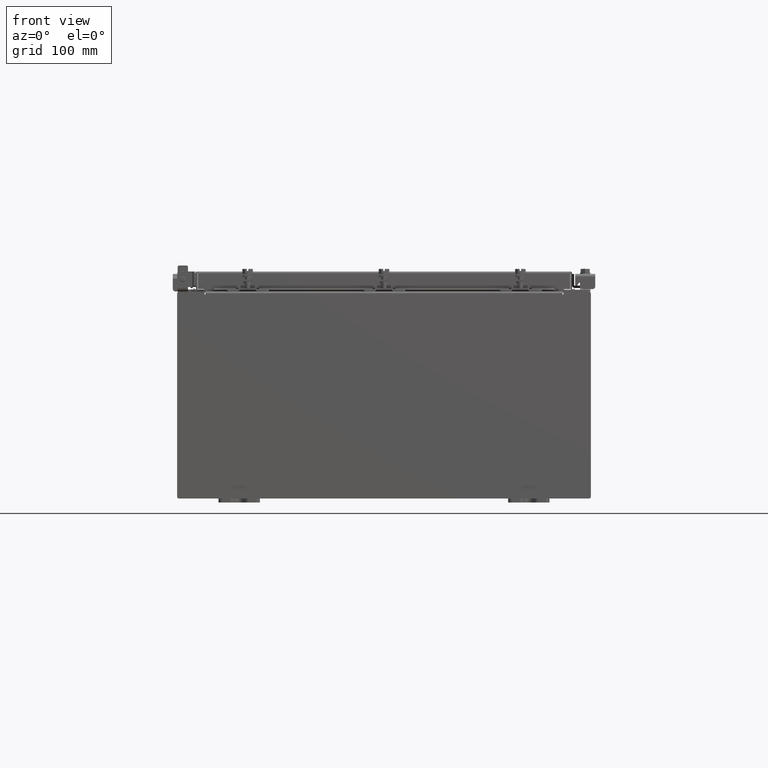
[diagram: clean part render]
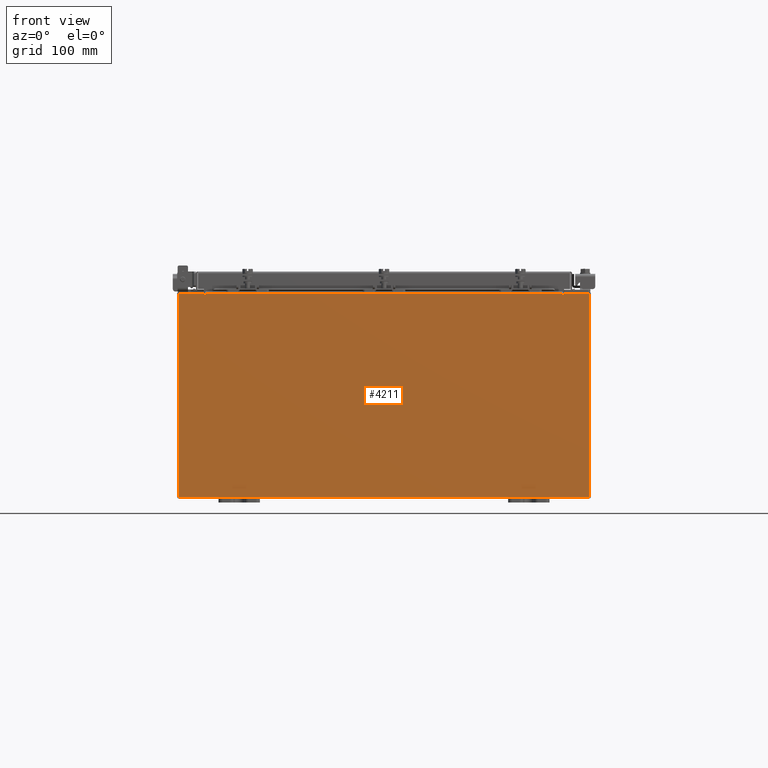
[diagram: same view with one face highlighted and labeled with its STEP entity id]
A machine part, front view. The second image highlights one B-rep face of the part: STEP entity #4211.
In plain terms, the highlighted planar face has unit normal (-0, 1, -0).
Its self-contained STEP definition (entity closure, byte-faithful):
#147 = DIRECTION ( 'NONE',  ( 0.0000000000000000000, 0.0000000000000000000, -1.000000000000000000 ) ) ;
#336 = DIRECTION ( 'NONE',  ( -1.000000000000000000, -0.0000000000000000000, -0.0000000000000000000 ) ) ;
#438 = LINE ( 'NONE', #8340, #18470 ) ;
#469 = AXIS2_PLACEMENT_3D ( 'NONE', #7361, #19547, #9124 ) ;
#649 = DIRECTION ( 'NONE',  ( 0.0000000000000000000, 0.0000000000000000000, 1.000000000000000000 ) ) ;
#845 = VECTOR ( 'NONE', #21906, 39.37007874015748100 ) ;
#1278 = DIRECTION ( 'NONE',  ( -0.0000000000000000000, -0.0000000000000000000, 1.000000000000000000 ) ) ;
#1287 = ORIENTED_EDGE ( 'NONE', *, *, #5927, .F. ) ;
#1333 = VERTEX_POINT ( 'NONE', #18569 ) ;
#1365 = DIRECTION ( 'NONE',  ( 0.0000000000000000000, 0.0000000000000000000, -1.000000000000000000 ) ) ;
#1423 = VECTOR ( 'NONE', #336, 39.37007874015748100 ) ;
#1713 = DIRECTION ( 'NONE',  ( 0.0000000000000000000, 0.0000000000000000000, 1.000000000000000000 ) ) ;
#2458 = CARTESIAN_POINT ( 'NONE',  ( 8.674550000000001800, 0.0000000000000000000, 4.925300000000000000 ) ) ;
#2516 = CARTESIAN_POINT ( 'NONE',  ( -8.674549999999996400, 0.0000000000000000000, 4.874950000000000100 ) ) ;
#2829 = VERTEX_POINT ( 'NONE', #7440 ) ;
#3495 = CARTESIAN_POINT ( 'NONE',  ( -8.674549999999996400, -0.0000000000000000000, 0.0000000000000000000 ) ) ;
#4151 = CARTESIAN_POINT ( 'NONE',  ( 8.637200000000000000, 0.0000000000000000000, 0.0000000000000000000 ) ) ;
#4205 = VERTEX_POINT ( 'NONE', #17601 ) ;
#4211 = ADVANCED_FACE ( 'NONE', ( #8668 ), #16441, .F. ) ;
#4612 = VERTEX_POINT ( 'NONE', #9658 ) ;
#4621 = CIRCLE ( 'NONE', #11847, 0.01867500000000003900 ) ;
#5168 = CARTESIAN_POINT ( 'NONE',  ( -9.925300000000000000, 0.0000000000000000000, 4.925300000000000000 ) ) ;
#5859 = CIRCLE ( 'NONE', #469, 0.01867500000000003900 ) ;
#5927 = EDGE_CURVE ( 'NONE', #22108, #6551, #7785, .T. ) ;
#5949 = ORIENTED_EDGE ( 'NONE', *, *, #17629, .F. ) ;
#6151 = LINE ( 'NONE', #8261, #14867 ) ;
#6322 = CARTESIAN_POINT ( 'NONE',  ( 8.674550000000000000, 0.0000000000000000000, 4.874950000000000100 ) ) ;
#6551 = VERTEX_POINT ( 'NONE', #6322 ) ;
#6668 = CARTESIAN_POINT ( 'NONE',  ( 8.637200000000000000, 0.0000000000000000000, 4.874950000000000100 ) ) ;
#6897 = EDGE_CURVE ( 'NONE', #2829, #13690, #5859, .T. ) ;
#7123 = ORIENTED_EDGE ( 'NONE', *, *, #18113, .T. ) ;
#7361 = CARTESIAN_POINT ( 'NONE',  ( -8.655874999999996400, 0.0000000000000000000, 4.874950000000000100 ) ) ;
#7440 = CARTESIAN_POINT ( 'NONE',  ( -8.637199999999996400, -0.0000000000000000000, 4.874950000000000100 ) ) ;
#7533 = ORIENTED_EDGE ( 'NONE', *, *, #13375, .T. ) ;
#7785 = LINE ( 'NONE', #11781, #20626 ) ;
#8208 = EDGE_CURVE ( 'NONE', #13877, #2829, #21088, .T. ) ;
#8261 = CARTESIAN_POINT ( 'NONE',  ( -9.925300000000000000, 0.0000000000000000000, 4.925300000000000000 ) ) ;
#8285 = EDGE_CURVE ( 'NONE', #4205, #16290, #15378, .T. ) ;
#8340 = CARTESIAN_POINT ( 'NONE',  ( 9.925300000000000000, 0.0000000000000000000, 4.925300000000000000 ) ) ;
#8351 = EDGE_CURVE ( 'NONE', #4612, #14940, #13731, .T. ) ;
#8439 = DIRECTION ( 'NONE',  ( 1.000000000000000000, 0.0000000000000000000, 0.0000000000000000000 ) ) ;
#8668 = FACE_OUTER_BOUND ( 'NONE', #15990, .T. ) ;
#8924 = CARTESIAN_POINT ( 'NONE',  ( -8.637199999999996400, -0.0000000000000000000, 0.0000000000000000000 ) ) ;
#9124 = DIRECTION ( 'NONE',  ( 0.0000000000000000000, 0.0000000000000000000, -1.000000000000000000 ) ) ;
#9658 = CARTESIAN_POINT ( 'NONE',  ( -9.925300000000000000, 0.0000000000000000000, 4.925300000000000000 ) ) ;
#9672 = EDGE_CURVE ( 'NONE', #13877, #19796, #18850, .T. ) ;
#9682 = VERTEX_POINT ( 'NONE', #6668 ) ;
#9766 = CARTESIAN_POINT ( 'NONE',  ( -9.925300000000000000, 0.0000000000000000000, 4.925300000000000000 ) ) ;
#10107 = EDGE_CURVE ( 'NONE', #9682, #19796, #22075, .T. ) ;
#10366 = ORIENTED_EDGE ( 'NONE', *, *, #9672, .T. ) ;
#10380 = ORIENTED_EDGE ( 'NONE', *, *, #8351, .T. ) ;
#10669 = DIRECTION ( 'NONE',  ( -0.0000000000000000000, 1.000000000000000000, -0.0000000000000000000 ) ) ;
#10716 = VECTOR ( 'NONE', #8439, 39.37007874015748100 ) ;
#11185 = CARTESIAN_POINT ( 'NONE',  ( 8.637200000000000000, 0.0000000000000000000, 4.912300000000000100 ) ) ;
#11521 = ORIENTED_EDGE ( 'NONE', *, *, #6897, .F. ) ;
#11597 = ORIENTED_EDGE ( 'NONE', *, *, #12741, .F. ) ;
#11781 = CARTESIAN_POINT ( 'NONE',  ( 8.674549999999683800, -0.0000000000000000000, -5.647877341832623900E-013 ) ) ;
#11847 = AXIS2_PLACEMENT_3D ( 'NONE', #21078, #10669, #147 ) ;
#11919 = ORIENTED_EDGE ( 'NONE', *, *, #10107, .F. ) ;
#11957 = VECTOR ( 'NONE', #20838, 39.37007874015748100 ) ;
#12036 = ORIENTED_EDGE ( 'NONE', *, *, #14569, .T. ) ;
#12687 = CARTESIAN_POINT ( 'NONE',  ( -9.925300000000000000, 0.0000000000000000000, -4.925300000000000000 ) ) ;
#12741 = EDGE_CURVE ( 'NONE', #13690, #14940, #18761, .T. ) ;
#13044 = AXIS2_PLACEMENT_3D ( 'NONE', #16348, #16287, #16212 ) ;
#13375 = EDGE_CURVE ( 'NONE', #22108, #1333, #16560, .T. ) ;
#13690 = VERTEX_POINT ( 'NONE', #2516 ) ;
#13731 = LINE ( 'NONE', #9766, #845 ) ;
#13877 = VERTEX_POINT ( 'NONE', #22131 ) ;
#14569 = EDGE_CURVE ( 'NONE', #16290, #4612, #6151, .T. ) ;
#14867 = VECTOR ( 'NONE', #1278, 39.37007874015748100 ) ;
#14940 = VERTEX_POINT ( 'NONE', #19506 ) ;
#15378 = LINE ( 'NONE', #21259, #1423 ) ;
#15990 = EDGE_LOOP ( 'NONE', ( #11597, #11521, #20367, #10366, #11919, #5949, #1287, #7533, #7123, #18732, #12036, #10380 ) ) ;
#16212 = DIRECTION ( 'NONE',  ( 0.0000000000000000000, -0.0000000000000000000, -1.000000000000000000 ) ) ;
#16287 = DIRECTION ( 'NONE',  ( 0.0000000000000000000, -1.000000000000000000, 0.0000000000000000000 ) ) ;
#16290 = VERTEX_POINT ( 'NONE', #12687 ) ;
#16348 = CARTESIAN_POINT ( 'NONE',  ( 0.0000000000000000000, 0.0000000000000000000, 0.0000000000000000000 ) ) ;
#16441 = PLANE ( 'NONE',  #13044 ) ;
#16560 = LINE ( 'NONE', #5168, #11957 ) ;
#16946 = DIRECTION ( 'NONE',  ( -6.510859170600007400E-014, 0.0000000000000000000, -1.000000000000000000 ) ) ;
#17601 = CARTESIAN_POINT ( 'NONE',  ( 9.925300000000000000, 0.0000000000000000000, -4.925300000000000000 ) ) ;
#17629 = EDGE_CURVE ( 'NONE', #6551, #9682, #4621, .T. ) ;
#18113 = EDGE_CURVE ( 'NONE', #1333, #4205, #438, .T. ) ;
#18228 = VECTOR ( 'NONE', #1713, 39.37007874015748100 ) ;
#18470 = VECTOR ( 'NONE', #1365, 39.37007874015748100 ) ;
#18569 = CARTESIAN_POINT ( 'NONE',  ( 9.925300000000000000, 0.0000000000000000000, 4.925300000000000000 ) ) ;
#18732 = ORIENTED_EDGE ( 'NONE', *, *, #8285, .T. ) ;
#18761 = LINE ( 'NONE', #3495, #18228 ) ;
#18850 = LINE ( 'NONE', #18852, #10716 ) ;
#18852 = CARTESIAN_POINT ( 'NONE',  ( -8.637200000000000000, -7.171100983368691200E-016, 4.912300000000000100 ) ) ;
#19506 = CARTESIAN_POINT ( 'NONE',  ( -8.674549999999996400, 0.0000000000000000000, 4.925300000000000000 ) ) ;
#19547 = DIRECTION ( 'NONE',  ( -0.0000000000000000000, 1.000000000000000000, -0.0000000000000000000 ) ) ;
#19796 = VERTEX_POINT ( 'NONE', #11185 ) ;
#20367 = ORIENTED_EDGE ( 'NONE', *, *, #8208, .F. ) ;
#20626 = VECTOR ( 'NONE', #16946, 39.37007874015748100 ) ;
#20838 = DIRECTION ( 'NONE',  ( 1.000000000000000000, 0.0000000000000000000, 0.0000000000000000000 ) ) ;
#21037 = VECTOR ( 'NONE', #649, 39.37007874015748100 ) ;
#21078 = CARTESIAN_POINT ( 'NONE',  ( 8.655875000000000000, 0.0000000000000000000, 4.874950000000000100 ) ) ;
#21088 = LINE ( 'NONE', #8924, #21599 ) ;
#21109 = DIRECTION ( 'NONE',  ( 0.0000000000000000000, 0.0000000000000000000, -1.000000000000000000 ) ) ;
#21259 = CARTESIAN_POINT ( 'NONE',  ( -9.925300000000000000, 0.0000000000000000000, -4.925300000000000000 ) ) ;
#21599 = VECTOR ( 'NONE', #21109, 39.37007874015748100 ) ;
#21906 = DIRECTION ( 'NONE',  ( 1.000000000000000000, 0.0000000000000000000, 0.0000000000000000000 ) ) ;
#22075 = LINE ( 'NONE', #4151, #21037 ) ;
#22108 = VERTEX_POINT ( 'NONE', #2458 ) ;
#22131 = CARTESIAN_POINT ( 'NONE',  ( -8.637199999999996400, -7.171100983368691200E-016, 4.912300000000000100 ) ) ;